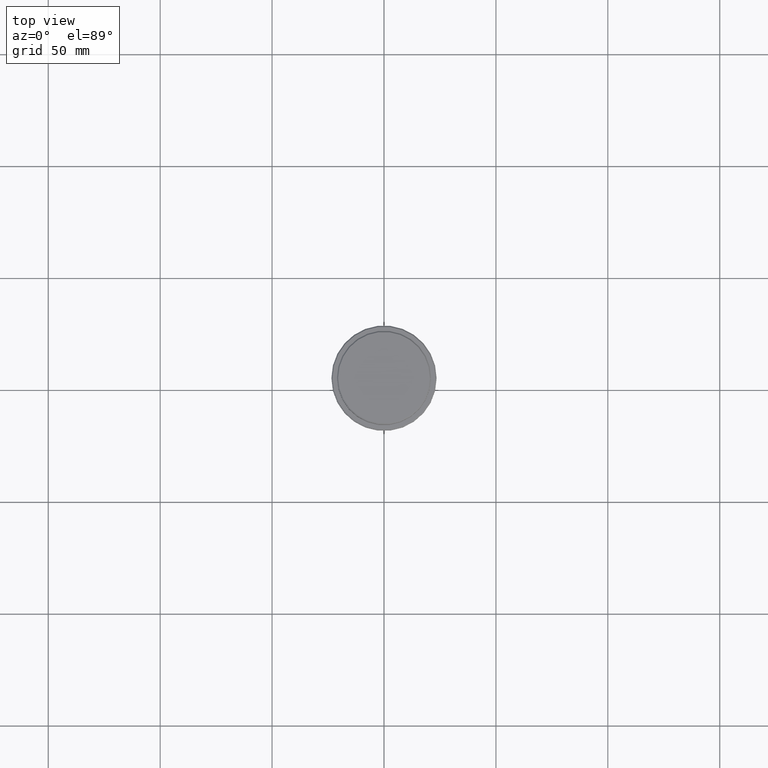
[diagram: clean part render]
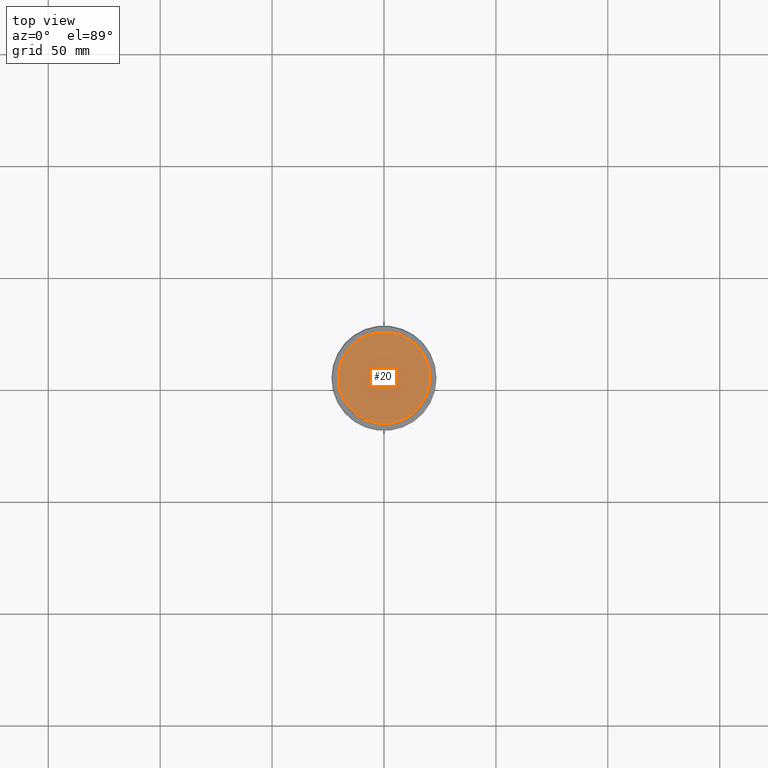
[diagram: same view with one face highlighted and labeled with its STEP entity id]
A machine part, top view. The second image highlights one B-rep face of the part: STEP entity #20.
In plain terms, the highlighted planar face has unit normal (0, -0, 1).
Its self-contained STEP definition (entity closure, byte-faithful):
#10 = CIRCLE ( 'NONE', #1086, 20.50000000000004619 ) ;
#20 = ADVANCED_FACE ( 'NONE', ( #1257 ), #820, .T. ) ;
#96 = CIRCLE ( 'NONE', #1272, 20.50000000000004619 ) ;
#147 = ORIENTED_EDGE ( 'NONE', *, *, #659, .T. ) ;
#203 = ORIENTED_EDGE ( 'NONE', *, *, #1227, .T. ) ;
#246 = DIRECTION ( 'NONE',  ( -0.000000000000000000, -0.000000000000000000, 1.000000000000000000 ) ) ;
#251 = DIRECTION ( 'NONE',  ( 1.000000000000000000, 0.000000000000000000, 0.000000000000000000 ) ) ;
#332 = VERTEX_POINT ( 'NONE', #1216 ) ;
#377 = DIRECTION ( 'NONE',  ( 0.000000000000000000, -0.000000000000000000, 1.000000000000000000 ) ) ;
#380 = CARTESIAN_POINT ( 'NONE',  ( 0.000000000000000000, 0.000000000000000000, 0.000000000000000000 ) ) ;
#659 = EDGE_CURVE ( 'NONE', #947, #332, #10, .T. ) ;
#697 = DIRECTION ( 'NONE',  ( 1.000000000000000000, 0.000000000000000000, 0.000000000000000000 ) ) ;
#820 = PLANE ( 'NONE',  #875 ) ;
#822 = DIRECTION ( 'NONE',  ( 1.000000000000000000, 0.000000000000000000, 0.000000000000000000 ) ) ;
#875 = AXIS2_PLACEMENT_3D ( 'NONE', #1147, #377, #251 ) ;
#947 = VERTEX_POINT ( 'NONE', #1274 ) ;
#1086 = AXIS2_PLACEMENT_3D ( 'NONE', #1330, #246, #697 ) ;
#1144 = DIRECTION ( 'NONE',  ( -0.000000000000000000, -0.000000000000000000, 1.000000000000000000 ) ) ;
#1147 = CARTESIAN_POINT ( 'NONE',  ( 0.000000000000000000, 0.000000000000000000, 0.000000000000000000 ) ) ;
#1216 = CARTESIAN_POINT ( 'NONE',  ( 20.50000000000004619, 2.541142108230760635E-15, 0.000000000000000000 ) ) ;
#1227 = EDGE_CURVE ( 'NONE', #332, #947, #96, .T. ) ;
#1257 = FACE_OUTER_BOUND ( 'NONE', #1270, .T. ) ;
#1270 = EDGE_LOOP ( 'NONE', ( #147, #203 ) ) ;
#1272 = AXIS2_PLACEMENT_3D ( 'NONE', #380, #1144, #822 ) ;
#1274 = CARTESIAN_POINT ( 'NONE',  ( -20.50000000000004619, 0.000000000000000000, 0.000000000000000000 ) ) ;
#1330 = CARTESIAN_POINT ( 'NONE',  ( 0.000000000000000000, 0.000000000000000000, 0.000000000000000000 ) ) ;